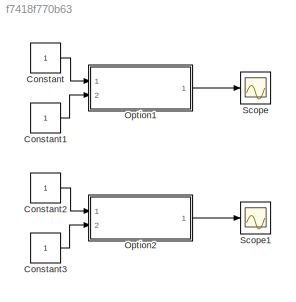
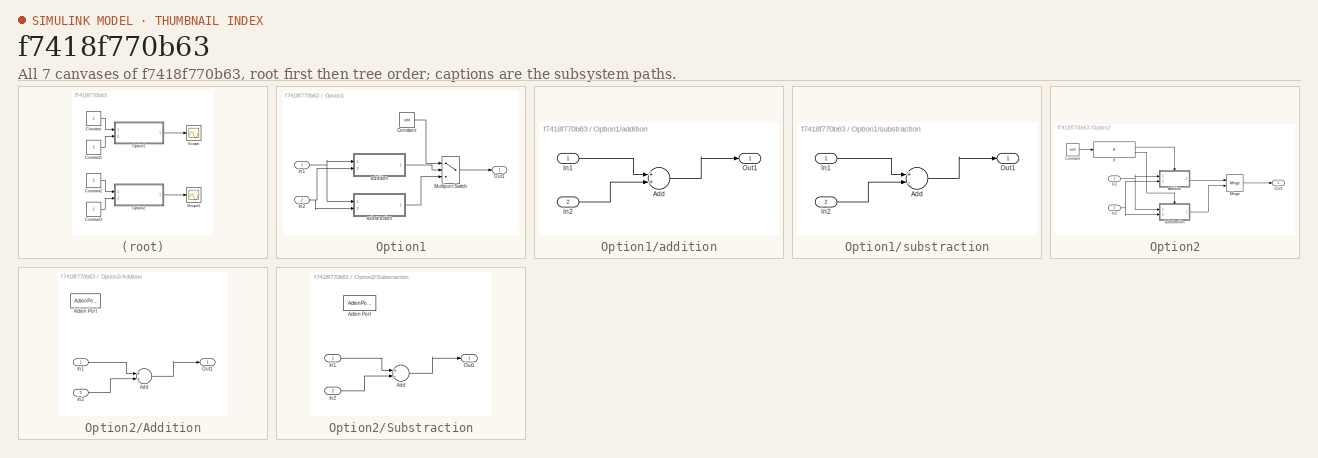
[diagram: thumbnail index - all 7 canvases of the model, root first then tree order]
MODEL slx_f7418f770b63
KIND model
CONFIG AbsTol = auto
CONFIG EnableMultiTasking = off
CONFIG FixedStep = auto
CONFIG MaxStep = auto
CONFIG MinStep = auto
CONFIG RelTol = 1e-3
CONFIG SampleTimeConstraint = Unconstrained
CONFIG Solver = VariableStepAuto
CONFIG SolverName = VariableStepAuto
CONFIG StartTime = 0.0
CONFIG StopTime = 10.0
BLOCK [Constant] Constant
BLOCK [Constant] Constant1
BLOCK [Constant] Constant2
BLOCK [Constant] Constant3
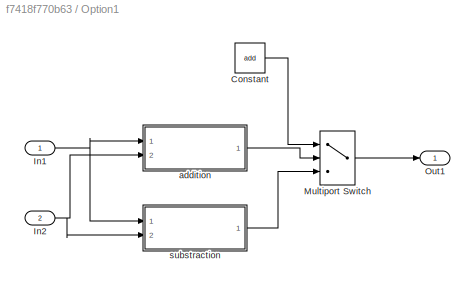
BLOCK [SubSystem] Option1
  Ports = [2, 1]
  RequestExecContextInheritance = off
  Variant = off
BLOCK [Constant] Option1/Constant
  Value = add
BLOCK [Inport] Option1/In1
  IconDisplay = Port number
BLOCK [Inport] Option1/In2
  IconDisplay = Port number
  Port = 2
BLOCK [MultiPortSwitch] Option1/Multiport Switch
  InputSameDT = off
  Inputs = 2
  Ports = [3, 1]
  SaturateOnIntegerOverflow = off
BLOCK [Outport] Option1/Out1
  IconDisplay = Port number
BLOCK [SubSystem] Option1/addition
  Ports = [2, 1]
  RequestExecContextInheritance = off
  Variant = off
BLOCK [Sum] Option1/addition/Add
  InputSameDT = off
  OutDataTypeStr = Inherit: Inherit via internal rule
  Ports = [2, 1]
  SaturateOnIntegerOverflow = off
BLOCK [Inport] Option1/addition/In1
  IconDisplay = Port number
BLOCK [Inport] Option1/addition/In2
  IconDisplay = Port number
  Port = 2
BLOCK [Outport] Option1/addition/Out1
  IconDisplay = Port number
BLOCK [SubSystem] Option1/substraction
  Ports = [2, 1]
  RequestExecContextInheritance = off
  Variant = off
BLOCK [Sum] Option1/substraction/Add
  InputSameDT = off
  Inputs = +-
  OutDataTypeStr = Inherit: Inherit via internal rule
  Ports = [2, 1]
  SaturateOnIntegerOverflow = off
BLOCK [Inport] Option1/substraction/In1
  IconDisplay = Port number
BLOCK [Inport] Option1/substraction/In2
  IconDisplay = Port number
  Port = 2
BLOCK [Outport] Option1/substraction/Out1
  IconDisplay = Port number
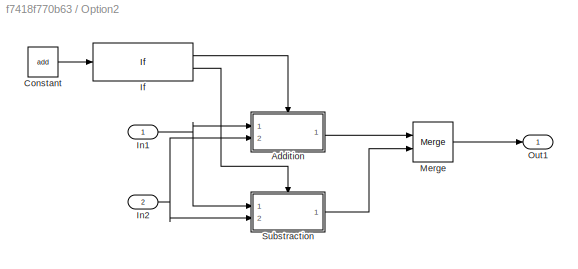
BLOCK [SubSystem] Option2
  Ports = [2, 1]
  RequestExecContextInheritance = off
  Variant = off
BLOCK [SubSystem] Option2/Addition
  Ports = [2, 1, 0, 0, 0, 0, 0, 1]
  RequestExecContextInheritance = off
  TreatAsAtomicUnit = on
  Variant = off
BLOCK [ActionPort] Option2/Addition/Action Port
  ActionType = then
BLOCK [Sum] Option2/Addition/Add
  InputSameDT = off
  OutDataTypeStr = Inherit: Inherit via internal rule
  Ports = [2, 1]
  SaturateOnIntegerOverflow = off
BLOCK [Inport] Option2/Addition/In1
  IconDisplay = Port number
BLOCK [Inport] Option2/Addition/In2
  IconDisplay = Port number
  Port = 2
BLOCK [Outport] Option2/Addition/Out1
  IconDisplay = Port number
BLOCK [Constant] Option2/Constant
  Value = add
BLOCK [If] Option2/If
  IfExpression = u1 == 1
  Ports = [1, 2]
BLOCK [Inport] Option2/In1
  IconDisplay = Port number
BLOCK [Inport] Option2/In2
  IconDisplay = Port number
  Port = 2
BLOCK [Merge] Option2/Merge
  Ports = [2, 1]
BLOCK [Outport] Option2/Out1
  IconDisplay = Port number
BLOCK [SubSystem] Option2/Substraction
  Ports = [2, 1, 0, 0, 0, 0, 0, 1]
  RequestExecContextInheritance = off
  TreatAsAtomicUnit = on
  Variant = off
BLOCK [ActionPort] Option2/Substraction/Action Port
  ActionType = else
BLOCK [Sum] Option2/Substraction/Add
  InputSameDT = off
  Inputs = +-
  OutDataTypeStr = Inherit: Inherit via internal rule
  Ports = [2, 1]
  SaturateOnIntegerOverflow = off
BLOCK [Inport] Option2/Substraction/In1
  IconDisplay = Port number
BLOCK [Inport] Option2/Substraction/In2
  IconDisplay = Port number
  Port = 2
BLOCK [Outport] Option2/Substraction/Out1
  IconDisplay = Port number
BLOCK [Scope] Scope
  NumInputPorts = 1
  Ports = [1]
  ScopeSpecificationString = Simulink.scopes.TimeScopeBlockCfg('CurrentConfiguration', extmgr.ConfigurationSet(extmgr.Configuration('Core','General UI',true),extmgr.Configuration('Core','Source UI',true),extmgr.Configuration('Sources','WiredSimulink',true),extmgr.Configuration('Visuals','Time Domain',true,'SerializedDisplays',{struct('MinYLimReal','-1.00000','MaxYLimReal','1.00000','YLabelReal','','MinYLimMag','0.00000','MaxY...<+1353ch>
BLOCK [Scope] Scope1
  NumInputPorts = 1
  Ports = [1]
  ScopeSpecificationString = Simulink.scopes.TimeScopeBlockCfg('CurrentConfiguration', extmgr.ConfigurationSet(extmgr.Configuration('Core','General UI',true),extmgr.Configuration('Core','Source UI',true),extmgr.Configuration('Sources','WiredSimulink',true,'DataLoggingVariableName','ScopeData1'),extmgr.Configuration('Visuals','Time Domain',true,'SerializedDisplays',{struct('MinYLimReal','-1.00000','MaxYLimReal','1.00000','YLab...<+1392ch>
LINE Constant1:1 -> Option1:2
LINE Constant2:1 -> Option2:1
LINE Constant3:1 -> Option2:2
LINE Constant:1 -> Option1:1
LINE Option1/Constant:1 -> Option1/Multiport Switch:1
NET Option1/In1:1 -> Option1/addition:1, Option1/substraction:1
NET Option1/In2:1 -> Option1/addition:2, Option1/substraction:2
LINE Option1/Multiport Switch:1 -> Option1/Out1:1
LINE Option1/addition/Add:1 -> Option1/addition/Out1:1
LINE Option1/addition/In1:1 -> Option1/addition/Add:1
LINE Option1/addition/In2:1 -> Option1/addition/Add:2
LINE Option1/addition:1 -> Option1/Multiport Switch:2
LINE Option1/substraction/Add:1 -> Option1/substraction/Out1:1
LINE Option1/substraction/In1:1 -> Option1/substraction/Add:1
LINE Option1/substraction/In2:1 -> Option1/substraction/Add:2
LINE Option1/substraction:1 -> Option1/Multiport Switch:3
LINE Option1:1 -> Scope:1
LINE Option2/Addition/Add:1 -> Option2/Addition/Out1:1
LINE Option2/Addition/In1:1 -> Option2/Addition/Add:1
LINE Option2/Addition/In2:1 -> Option2/Addition/Add:2
LINE Option2/Addition:1 -> Option2/Merge:1
LINE Option2/Constant:1 -> Option2/If:1
LINE Option2/If:1 -> Option2/Addition:ifaction
LINE Option2/If:2 -> Option2/Substraction:ifaction
NET Option2/In1:1 -> Option2/Addition:1, Option2/Substraction:1
NET Option2/In2:1 -> Option2/Addition:2, Option2/Substraction:2
LINE Option2/Merge:1 -> Option2/Out1:1
LINE Option2/Substraction/Add:1 -> Option2/Substraction/Out1:1
LINE Option2/Substraction/In1:1 -> Option2/Substraction/Add:1
LINE Option2/Substraction/In2:1 -> Option2/Substraction/Add:2
LINE Option2/Substraction:1 -> Option2/Merge:2
LINE Option2:1 -> Scope1:1
note: NET lines group one-source signal fan-out (src -> all destinations, sorted); 1:1 wires keep LINE
